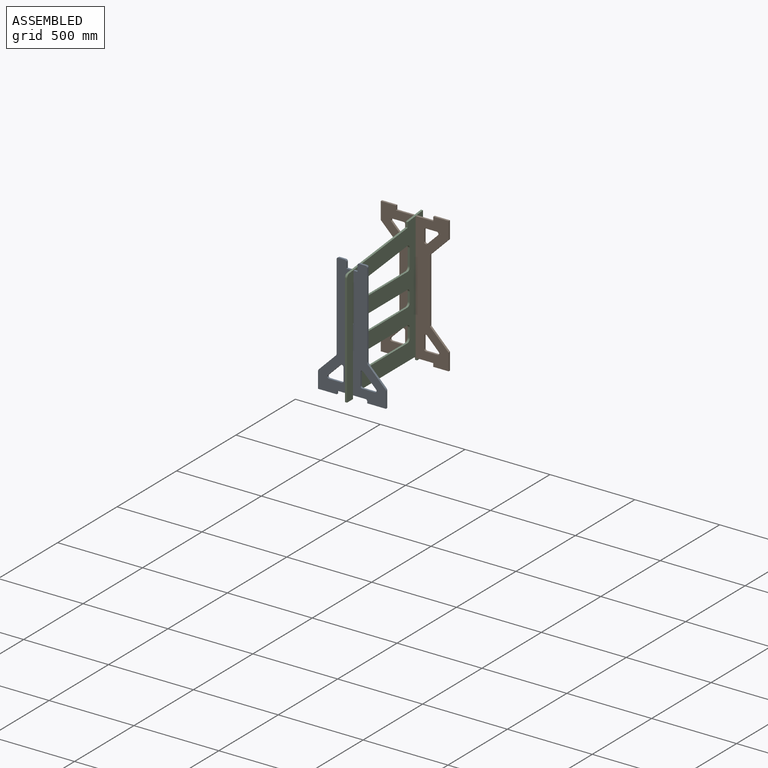
[diagram: assembled view]
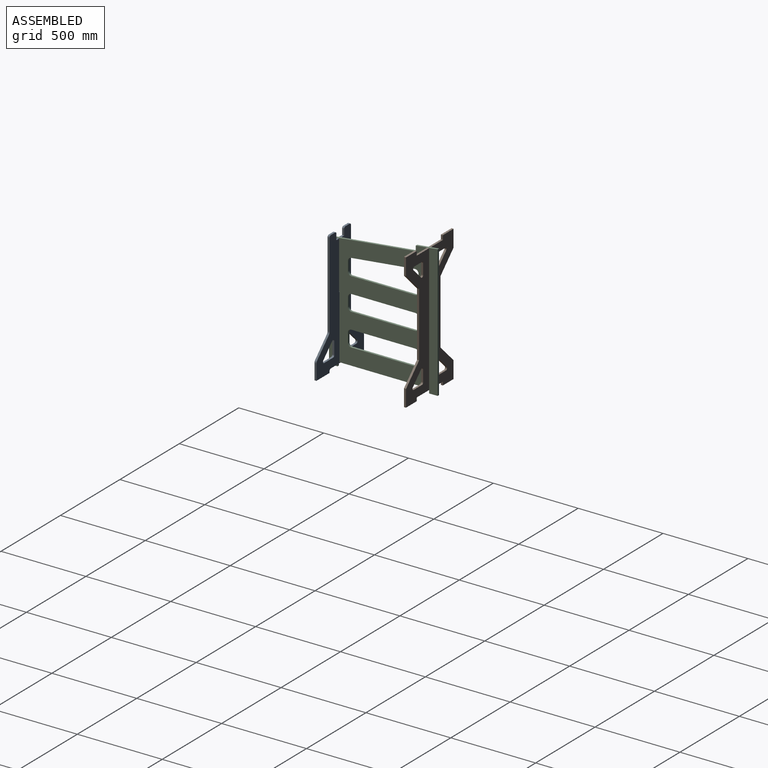
[diagram: assembled view, second angle]
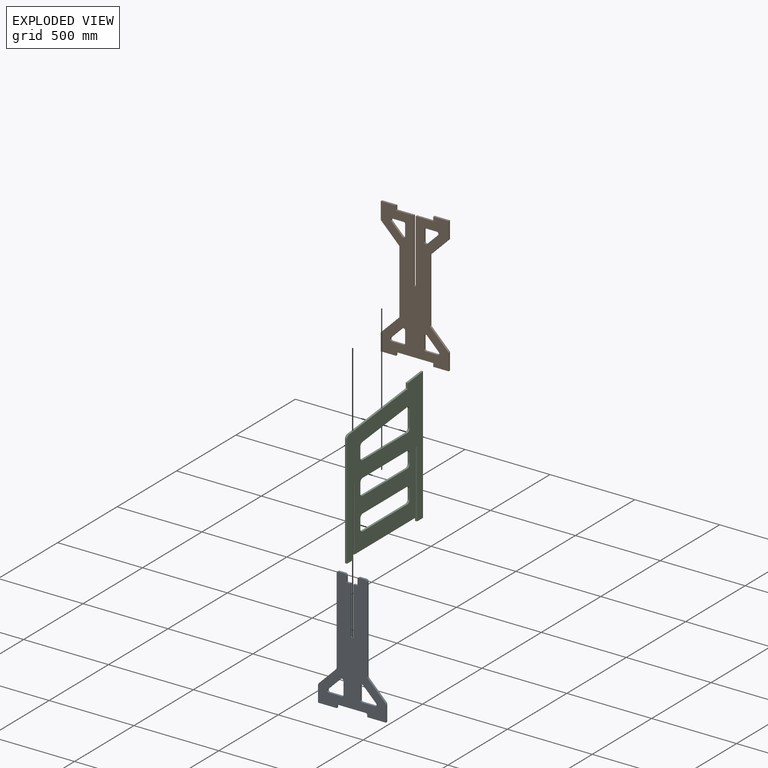
[diagram: exploded view]
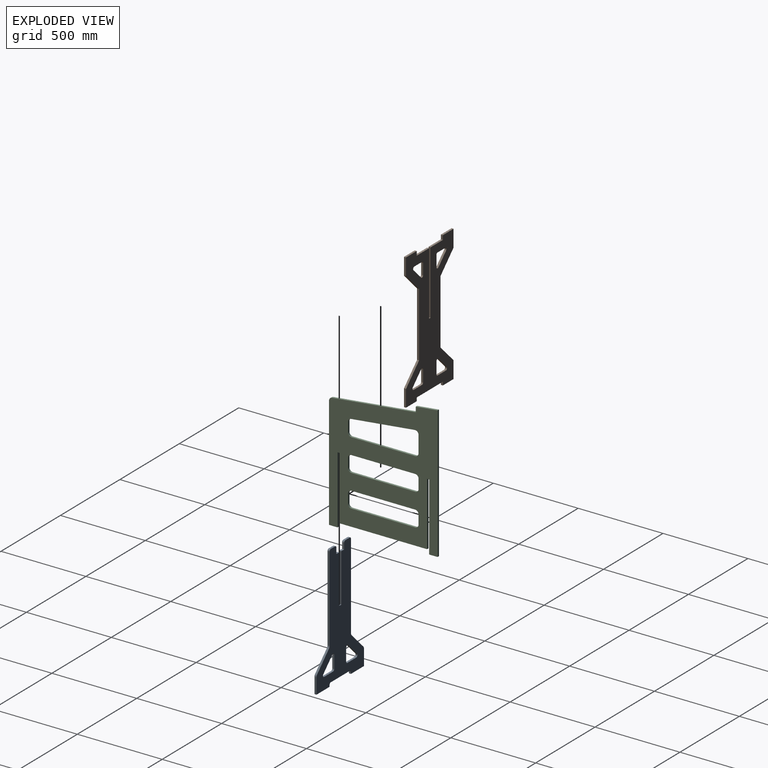
[diagram: exploded view, second angle]
ASSEMBLY  parts=3 mates=2
PART A: 44 faces, bbox 400x12x730 mm
  f0: plane 730x400mm, normal (0,-1,0), area 142395.3mm2, adj f2,f3,f4,f5,f6,f7,f8,f9
  f1: plane 730x400mm, normal (0,1,0), area 142395.3mm2, adj f2,f3,f4,f5,f6,f7,f8,f9
  f2: plane 285x12mm, normal (1,0,0), area 3420mm2, adj f0,f1,f5,f26
  f3: plane 110x12mm, normal (0,0,-1), area 1320mm2, adj f0,f1,f14,f31
  f4: plane 285x12mm, normal (-1,0,0), area 3420mm2, adj f0,f1,f5,f25
  f5: plane 18x12mm, normal (0,0,1), area 216mm2, adj f0,f1,f2,f4
  f6: plane 35x12mm, normal (1,0,0), area 420mm2, adj f0,f1,f7,f26
  f7: cylinder r=10mm len=12mm, axis (0,1,0), area 188.5mm2, adj f0,f1,f6,f8
  f8: plane 37.5x12mm, normal (0,0,1), area 450mm2, adj f0,f1,f7,f9
  f9: cylinder r=10mm len=12mm, axis (0,1,0), area 188.5mm2, adj f0,f1,f8,f10
  f10: plane 501.72x12mm, normal (-1,0,0), area 6020.6mm2, adj f0,f1,f9,f11
  f11: cylinder r=20mm len=14.14mm, axis (0,1,0), area 188.5mm2, adj f0,f1,f10,f12
  f12: plane 98.28x98.28mm, normal (-0.71,0,0.71), area 1667.9mm2, adj f0,f1,f11,f13
  f13: cylinder r=20mm len=14.14mm, axis (0,1,0), area 188.5mm2, adj f0,f1,f12,f14
  f14: plane 91.72x12mm, normal (-1,0,0), area 1100.6mm2, adj f0,f1,f3,f13
  f15: plane 110x12mm, normal (0,0,-1), area 1320mm2, adj f0,f1,f16,f27
  f16: plane 91.72x12mm, normal (1,0,0), area 1100.6mm2, adj f0,f1,f15,f17
  f17: cylinder r=20mm len=14.14mm, axis (0,1,0), area 188.5mm2, adj f0,f1,f16,f18
  f18: plane 98.28x98.28mm, normal (0.71,0,0.71), area 1667.9mm2, adj f0,f1,f17,f19
  f19: cylinder r=20mm len=14.14mm, axis (0,1,0), area 188.5mm2, adj f0,f1,f18,f20
  f20: plane 501.72x12mm, normal (1,0,0), area 6020.6mm2, adj f0,f1,f19,f21
  f21: cylinder r=10mm len=12mm, axis (0,1,0), area 188.5mm2, adj f0,f1,f20,f22
  f22: plane 37.5x12mm, normal (0,0,1), area 450mm2, adj f0,f1,f21,f23
  f23: cylinder r=10mm len=12mm, axis (0,1,0), area 188.5mm2, adj f0,f1,f22,f24
  f24: plane 35x12mm, normal (-1,0,0), area 420mm2, adj f0,f1,f23,f25
  f25: plane 23.5x12mm, normal (0,0,1), area 282mm2, adj f0,f1,f4,f24
  f26: plane 23.5x12mm, normal (0,0,1), area 282mm2, adj f0,f1,f2,f6
  f27: plane 12x10mm, normal (-1,0,0), area 120mm2, adj f0,f1,f15,f28
  f28: cylinder r=10mm len=12mm, axis (0,-1,0), area 188.5mm2, adj f0,f1,f27,f29
  f29: plane 160x12mm, normal (0,0,-1), area 1920mm2, adj f0,f1,f28,f30
  f30: cylinder r=10mm len=12mm, axis (0,-1,0), area 188.5mm2, adj f0,f1,f29,f31
  f31: plane 12x10mm, normal (1,0,0), area 120mm2, adj f0,f1,f3,f30
  f32: plane 75.15x12mm, normal (0,0,1), area 901.8mm2, adj f0,f1,f33,f37
  f33: cylinder r=10mm len=12mm, axis (0,-1,0), area 188.5mm2, adj f0,f1,f32,f34
  f34: plane 75.15x12mm, normal (-1,0,0), area 901.8mm2, adj f0,f1,f33,f35
  f35: cylinder r=10mm len=17.07mm, axis (0,-1,0), area 282.7mm2, adj f0,f1,f34,f36
  f36: plane 75.15x75.15mm, normal (0.71,0,-0.71), area 1275.3mm2, adj f0,f1,f35,f37
  f37: cylinder r=10mm len=17.07mm, axis (0,-1,0), area 282.7mm2, adj f0,f1,f32,f36
  f38: plane 75.15x12mm, normal (0,0,1), area 901.8mm2, adj f0,f1,f39,f43
  f39: cylinder r=10mm len=17.07mm, axis (0,-1,0), area 282.7mm2, adj f0,f1,f38,f40
  f40: plane 75.15x75.15mm, normal (-0.71,0,-0.71), area 1275.3mm2, adj f0,f1,f39,f41
  f41: cylinder r=10mm len=17.07mm, axis (0,-1,0), area 282.7mm2, adj f0,f1,f40,f42
  f42: plane 75.15x12mm, normal (1,0,0), area 901.8mm2, adj f0,f1,f41,f43
  f43: cylinder r=10mm len=12mm, axis (0,-1,0), area 188.5mm2, adj f0,f1,f38,f42
PART B: 56 faces, bbox 400x12x800 mm
  f0: plane 800x400mm, normal (0,-1,0), area 178537mm2, adj f2,f3,f4,f5,f6,f7,f8,f9
  f1: plane 800x400mm, normal (0,1,0), area 178537mm2, adj f2,f3,f4,f5,f6,f7,f8,f9
  f2: plane 100x12mm, normal (-1,0,0), area 1200mm2, adj f0,f1,f3,f25
  f3: plane 110x110mm, normal (-0.71,0,-0.71), area 1866.8mm2, adj f0,f1,f2,f4
  f4: plane 380x12mm, normal (-1,0,0), area 4560mm2, adj f0,f1,f3,f5
  f5: plane 110x110mm, normal (-0.71,0,0.71), area 1866.8mm2, adj f0,f1,f4,f6
  f6: plane 100x12mm, normal (-1,0,0), area 1200mm2, adj f0,f1,f5,f7
  f7: plane 90x12mm, normal (0,0,-1), area 1080mm2, adj f0,f1,f6,f8
  f8: plane 20x12mm, normal (1,0,0), area 240mm2, adj f0,f1,f7,f9
  f9: plane 220x12mm, normal (0,0,-1), area 2640mm2, adj f0,f1,f8,f10
  f10: plane 20x12mm, normal (-1,0,0), area 240mm2, adj f0,f1,f9,f11
  f11: plane 90x12mm, normal (0,0,-1), area 1080mm2, adj f0,f1,f10,f12
  f12: plane 100x12mm, normal (1,0,0), area 1200mm2, adj f0,f1,f11,f13
  f13: plane 110x110mm, normal (0.71,0,0.71), area 1866.8mm2, adj f0,f1,f12,f14
  f14: plane 380x12mm, normal (1,0,0), area 4560mm2, adj f0,f1,f13,f15
  f15: plane 110x110mm, normal (0.71,0,-0.71), area 1866.8mm2, adj f0,f1,f14,f16
  f16: plane 100x12mm, normal (1,0,0), area 1200mm2, adj f0,f1,f15,f17
  f17: plane 90x12mm, normal (0,0,1), area 1080mm2, adj f0,f1,f16,f18
  f18: plane 25x12mm, normal (-1,0,0), area 300mm2, adj f0,f1,f17,f19
  f19: plane 104x12mm, normal (0,0,1), area 1248mm2, adj f0,f1,f18,f20
  f20: plane 375x12mm, normal (-1,0,0), area 4500mm2, adj f0,f1,f19,f21
  f21: plane 12x12mm, normal (0,0,1), area 144mm2, adj f0,f1,f20,f22
  f22: plane 375x12mm, normal (1,0,0), area 4500mm2, adj f0,f1,f21,f23
  f23: plane 104x12mm, normal (0,0,1), area 1248mm2, adj f0,f1,f22,f24
  f24: plane 25x12mm, normal (1,0,0), area 300mm2, adj f0,f1,f23,f25
  f25: plane 90x12mm, normal (0,0,1), area 1080mm2, adj f0,f1,f2,f24
  f26: plane 69.15x12mm, normal (0,0,1), area 829.8mm2, adj f0,f1,f27,f31
  f27: cylinder r=10mm len=17.07mm, axis (0,-1,0), area 282.7mm2, adj f0,f1,f26,f28
  f28: plane 69.15x69.15mm, normal (-0.71,0,-0.71), area 1173.5mm2, adj f0,f1,f27,f29
  f29: cylinder r=10mm len=17.07mm, axis (0,-1,0), area 282.7mm2, adj f0,f1,f28,f30
  f30: plane 69.15x12mm, normal (1,0,0), area 829.8mm2, adj f0,f1,f29,f31
  f31: cylinder r=10mm len=12mm, axis (0,-1,0), area 188.5mm2, adj f0,f1,f26,f30
  f32: plane 64.15x12mm, normal (1,0,0), area 769.8mm2, adj f0,f1,f33,f37
  f33: cylinder r=10mm len=17.07mm, axis (0,-1,0), area 282.7mm2, adj f0,f1,f32,f34
  f34: plane 64.15x64.15mm, normal (-0.71,0,0.71), area 1088.6mm2, adj f0,f1,f33,f35
  f35: cylinder r=10mm len=17.07mm, axis (0,-1,0), area 282.7mm2, adj f0,f1,f34,f36
  f36: plane 64.15x12mm, normal (0,0,-1), area 769.8mm2, adj f0,f1,f35,f37
  f37: cylinder r=10mm len=12mm, axis (0,-1,0), area 188.5mm2, adj f0,f1,f32,f36
  f38: plane 64.15x12mm, normal (-1,0,0), area 769.8mm2, adj f0,f1,f39,f43
  f39: cylinder r=10mm len=12mm, axis (0,-1,0), area 188.5mm2, adj f0,f1,f38,f40
  f40: plane 64.15x12mm, normal (0,0,-1), area 769.8mm2, adj f0,f1,f39,f41
  f41: cylinder r=10mm len=17.07mm, axis (0,-1,0), area 282.7mm2, adj f0,f1,f40,f42
  f42: plane 64.15x64.15mm, normal (0.71,0,0.71), area 1088.6mm2, adj f0,f1,f41,f43
  f43: cylinder r=10mm len=17.07mm, axis (0,-1,0), area 282.7mm2, adj f0,f1,f38,f42
  f44: cylinder r=10mm len=12mm, axis (0,-1,0), area 61.8mm2, adj f0,f1,f45,f46
  f45: cylinder r=10mm len=12mm, axis (0,-1,0), area 61.8mm2, adj f0,f1,f44,f46
  f46: plane 12x9.85mm, normal (-1,0,0), area 118.2mm2, adj f0,f1,f44,f45
  f47: plane 69.15x12mm, normal (0,0,1), area 829.8mm2, adj f0,f1,f48,f52
  f48: cylinder r=10mm len=12mm, axis (0,-1,0), area 188.5mm2, adj f0,f1,f47,f49
  f49: plane 69.15x12mm, normal (-1,0,0), area 829.8mm2, adj f0,f1,f48,f50
  f50: cylinder r=10mm len=17.07mm, axis (0,-1,0), area 282.7mm2, adj f0,f1,f49,f51
  f51: plane 69.15x69.15mm, normal (0.71,0,-0.71), area 1173.5mm2, adj f0,f1,f50,f52
  f52: cylinder r=10mm len=17.07mm, axis (0,-1,0), area 282.7mm2, adj f0,f1,f47,f51
  f53: cylinder r=10mm len=12mm, axis (0,-1,0), area 61.8mm2, adj f0,f1,f54,f55
  f54: plane 12x9.85mm, normal (1,0,0), area 118.2mm2, adj f0,f1,f53,f55
  f55: cylinder r=10mm len=12mm, axis (0,-1,0), area 61.8mm2, adj f0,f1,f53,f54
PART C: 45 faces, bbox 12x639.6x780.5 mm
  f0: plane 12x0.08mm, normal (0,-1,0), area 1mm2, adj f2,f3,f4,f44
  f1: plane 12x0.04mm, normal (0,1,0), area 0.5mm2, adj f2,f3,f19,f44
  f2: plane 780.53x639.59mm, normal (1,0,0), area 311637.9mm2, adj f0,f1,f4,f5,f6,f7,f8,f9
  f3: plane 780.53x639.59mm, normal (-1,0,0), area 311637.9mm2, adj f0,f1,f4,f5,f6,f7,f8,f9
  f4: plane 20.09x12mm, normal (0,-0.11,0.99), area 242.4mm2, adj f0,f2,f3,f5
  f5: cylinder r=20mm len=19.89mm, axis (-1,0,0), area 351.7mm2, adj f2,f3,f4,f6
  f6: plane 661.74x12mm, normal (0,-1,0), area 7940.9mm2, adj f2,f3,f5,f7
  f7: plane 50x12mm, normal (0,0,-1), area 600mm2, adj f2,f3,f6,f8
  f8: plane 400x12mm, normal (0,1,0), area 4800mm2, adj f2,f3,f7,f9
  f9: plane 12x12mm, normal (0,0,-1), area 144mm2, adj f2,f3,f8,f10
  f10: plane 375x12mm, normal (0,-1,0), area 4500mm2, adj f2,f3,f9,f11
  f11: plane 515.59x12mm, normal (0,0,-1), area 6187mm2, adj f2,f3,f10,f12
  f12: plane 375x12mm, normal (0,1,0), area 4500mm2, adj f2,f3,f11,f13
  f13: plane 12x12mm, normal (0,0,-1), area 144mm2, adj f2,f3,f12,f14
  f14: plane 400x12mm, normal (0,-1,0), area 4800mm2, adj f2,f3,f13,f15
  f15: plane 50x12mm, normal (0,0,-1), area 600mm2, adj f2,f3,f14,f16
  f16: plane 780.53x12mm, normal (0,1,0), area 9366.4mm2, adj f2,f3,f15,f17
  f17: plane 128.53x14.23mm, normal (0,-0.11,0.99), area 1551.8mm2, adj f2,f3,f16,f18
  f18: plane 30.18x12mm, normal (0,-1,0), area 362.2mm2, adj f2,f3,f17,f19
  f19: plane 403.08x44.62mm, normal (0,-0.11,0.99), area 4866.4mm2, adj f1,f2,f3,f18
  f20: plane 55x12mm, normal (0,-1,0), area 660mm2, adj f2,f3,f21,f27
  f21: cylinder r=20mm len=20mm, axis (1,0,0), area 377mm2, adj f2,f3,f20,f22
  f22: plane 375.59x12mm, normal (0,0,-1), area 4507mm2, adj f2,f3,f21,f23
  f23: cylinder r=20mm len=20mm, axis (1,0,0), area 377mm2, adj f2,f3,f22,f24
  f24: plane 55x12mm, normal (0,1,0), area 660mm2, adj f2,f3,f23,f25
  f25: cylinder r=20mm len=20mm, axis (1,0,0), area 377mm2, adj f2,f3,f24,f26
  f26: plane 375.59x12mm, normal (0,0,1), area 4507mm2, adj f2,f3,f25,f27
  f27: cylinder r=20mm len=20mm, axis (1,0,0), area 377mm2, adj f2,f3,f20,f26
  f28: plane 55x12mm, normal (0,-1,0), area 660mm2, adj f2,f3,f29,f35
  f29: cylinder r=20mm len=20mm, axis (1,0,0), area 377mm2, adj f2,f3,f28,f30
  f30: plane 375.59x12mm, normal (0,0,-1), area 4507mm2, adj f2,f3,f29,f31
  f31: cylinder r=20mm len=20mm, axis (1,0,0), area 377mm2, adj f2,f3,f30,f32
  f32: plane 55x12mm, normal (0,1,0), area 660mm2, adj f2,f3,f31,f33
  f33: cylinder r=20mm len=20mm, axis (1,0,0), area 377mm2, adj f2,f3,f32,f34
  f34: plane 375.59x12mm, normal (0,0,1), area 4507mm2, adj f2,f3,f33,f35
  f35: cylinder r=20mm len=20mm, axis (1,0,0), area 377mm2, adj f2,f3,f28,f34
  f36: plane 98.67x12mm, normal (0,-1,0), area 1184mm2, adj f2,f3,f37,f43
  f37: cylinder r=20mm len=22.2mm, axis (1,0,0), area 403.5mm2, adj f2,f3,f36,f38
  f38: plane 375.59x41.58mm, normal (0,0.11,-0.99), area 4534.6mm2, adj f2,f3,f37,f39
  f39: cylinder r=20mm len=19.88mm, axis (1,0,0), area 350.5mm2, adj f2,f3,f38,f40
  f40: plane 57.09x12mm, normal (0,1,0), area 685.1mm2, adj f2,f3,f39,f41
  f41: cylinder r=20mm len=20mm, axis (1,0,0), area 377mm2, adj f2,f3,f40,f42
  f42: plane 375.59x12mm, normal (0,0,1), area 4507mm2, adj f2,f3,f41,f43
  f43: cylinder r=20mm len=20mm, axis (1,0,0), area 377mm2, adj f2,f3,f36,f42
  f44: plane 70x12mm, normal (0,-0.11,0.99), area 845.1mm2, adj f0,f1,f2,f3
PLACE A t=(-702.45,-792.68,-549.47)mm
PLACE B t=(-702.45,-265.1,-551.41)mm
PLACE C t=(-708.45,-337.87,-289.94)mm
MATE slider A.f5 <-> C.f9  axis (0,0,-1) through (-711.45,-804.68,-549.47)mm
MATE slider C.f13 <-> B.f21  axis (0,0,1) through (-708.45,-277.1,-549.47)mm
